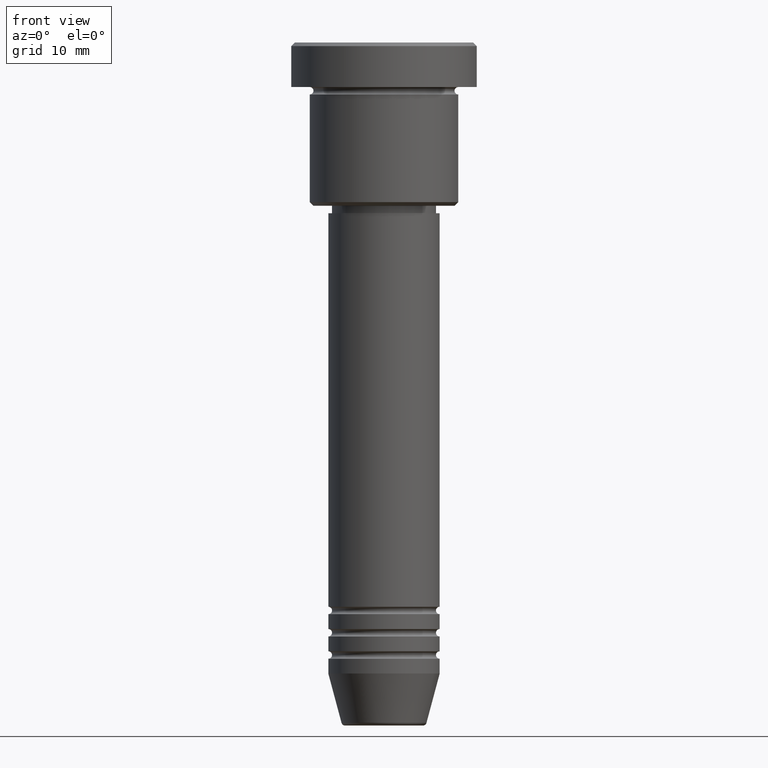
[diagram: clean part render]
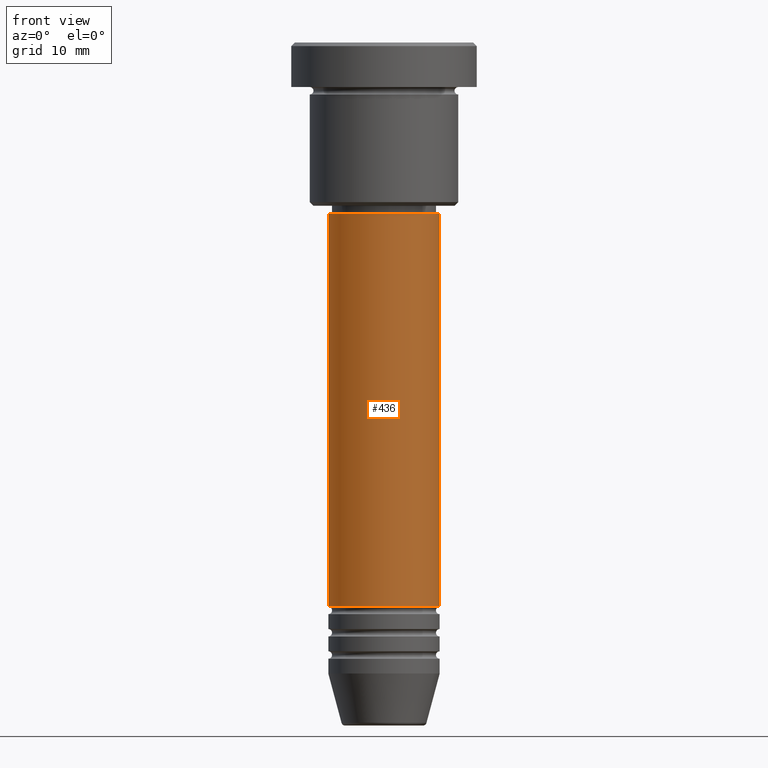
[diagram: same view with one face highlighted and labeled with its STEP entity id]
A machine part, front view. The second image highlights one B-rep face of the part: STEP entity #436.
In plain terms, the highlighted cylindrical surface (partial cylindrical patch) has radius 7.5 mm, axis along (-0, -0, 1).
Its self-contained STEP definition (entity closure, byte-faithful):
#14 = VERTEX_POINT ( 'NONE', #614 ) ;
#52 = CYLINDRICAL_SURFACE ( 'NONE', #773, 7.500000000000000000 ) ;
#112 = CARTESIAN_POINT ( 'NONE',  ( 7.500000000000000000, 0.000000000000000000, 0.000000000000000000 ) ) ;
#136 = VERTEX_POINT ( 'NONE', #1151 ) ;
#183 = AXIS2_PLACEMENT_3D ( 'NONE', #309, #1029, #1124 ) ;
#222 = CIRCLE ( 'NONE', #183, 7.500000000000000000 ) ;
#255 = ORIENTED_EDGE ( 'NONE', *, *, #1181, .F. ) ;
#280 = VECTOR ( 'NONE', #1152, 1000.000000000000000 ) ;
#285 = DIRECTION ( 'NONE',  ( -0.000000000000000000, -0.000000000000000000, 1.000000000000000000 ) ) ;
#298 = DIRECTION ( 'NONE',  ( 1.000000000000000000, 0.000000000000000000, 0.000000000000000000 ) ) ;
#303 = DIRECTION ( 'NONE',  ( -0.000000000000000000, -0.000000000000000000, 1.000000000000000000 ) ) ;
#309 = CARTESIAN_POINT ( 'NONE',  ( 0.000000000000000000, 0.000000000000000000, -22.99999999999996447 ) ) ;
#372 = CARTESIAN_POINT ( 'NONE',  ( 0.000000000000000000, 0.000000000000000000, -75.99999999999997158 ) ) ;
#392 = AXIS2_PLACEMENT_3D ( 'NONE', #372, #285, #921 ) ;
#410 = DIRECTION ( 'NONE',  ( -0.000000000000000000, -0.000000000000000000, 1.000000000000000000 ) ) ;
#436 = ADVANCED_FACE ( 'NONE', ( #766 ), #52, .T. ) ;
#467 = EDGE_CURVE ( 'NONE', #963, #14, #1041, .T. ) ;
#542 = LINE ( 'NONE', #805, #280 ) ;
#574 = ORIENTED_EDGE ( 'NONE', *, *, #916, .F. ) ;
#614 = CARTESIAN_POINT ( 'NONE',  ( 7.500000000000000000, 0.000000000000000000, -22.99999999999996447 ) ) ;
#635 = CARTESIAN_POINT ( 'NONE',  ( -7.500000000000000000, 9.184850993605147944E-16, -22.99999999999996447 ) ) ;
#729 = CARTESIAN_POINT ( 'NONE',  ( 7.500000000000000000, 0.000000000000000000, -75.99999999999997158 ) ) ;
#745 = EDGE_LOOP ( 'NONE', ( #574, #750, #1083, #255 ) ) ;
#750 = ORIENTED_EDGE ( 'NONE', *, *, #1005, .T. ) ;
#766 = FACE_OUTER_BOUND ( 'NONE', #745, .T. ) ;
#773 = AXIS2_PLACEMENT_3D ( 'NONE', #1033, #410, #298 ) ;
#805 = CARTESIAN_POINT ( 'NONE',  ( -7.500000000000000000, 9.184850993605147944E-16, 0.000000000000000000 ) ) ;
#916 = EDGE_CURVE ( 'NONE', #136, #948, #542, .T. ) ;
#921 = DIRECTION ( 'NONE',  ( 1.000000000000000000, 0.000000000000000000, 0.000000000000000000 ) ) ;
#948 = VERTEX_POINT ( 'NONE', #635 ) ;
#963 = VERTEX_POINT ( 'NONE', #729 ) ;
#988 = CIRCLE ( 'NONE', #392, 7.500000000000000000 ) ;
#1005 = EDGE_CURVE ( 'NONE', #136, #963, #988, .T. ) ;
#1029 = DIRECTION ( 'NONE',  ( -0.000000000000000000, -0.000000000000000000, 1.000000000000000000 ) ) ;
#1033 = CARTESIAN_POINT ( 'NONE',  ( 0.000000000000000000, 0.000000000000000000, 0.000000000000000000 ) ) ;
#1041 = LINE ( 'NONE', #112, #1136 ) ;
#1083 = ORIENTED_EDGE ( 'NONE', *, *, #467, .T. ) ;
#1124 = DIRECTION ( 'NONE',  ( 1.000000000000000000, 0.000000000000000000, 0.000000000000000000 ) ) ;
#1136 = VECTOR ( 'NONE', #303, 1000.000000000000000 ) ;
#1151 = CARTESIAN_POINT ( 'NONE',  ( -7.500000000000000000, 9.184850993605147944E-16, -75.99999999999997158 ) ) ;
#1152 = DIRECTION ( 'NONE',  ( -0.000000000000000000, -0.000000000000000000, 1.000000000000000000 ) ) ;
#1181 = EDGE_CURVE ( 'NONE', #948, #14, #222, .T. ) ;